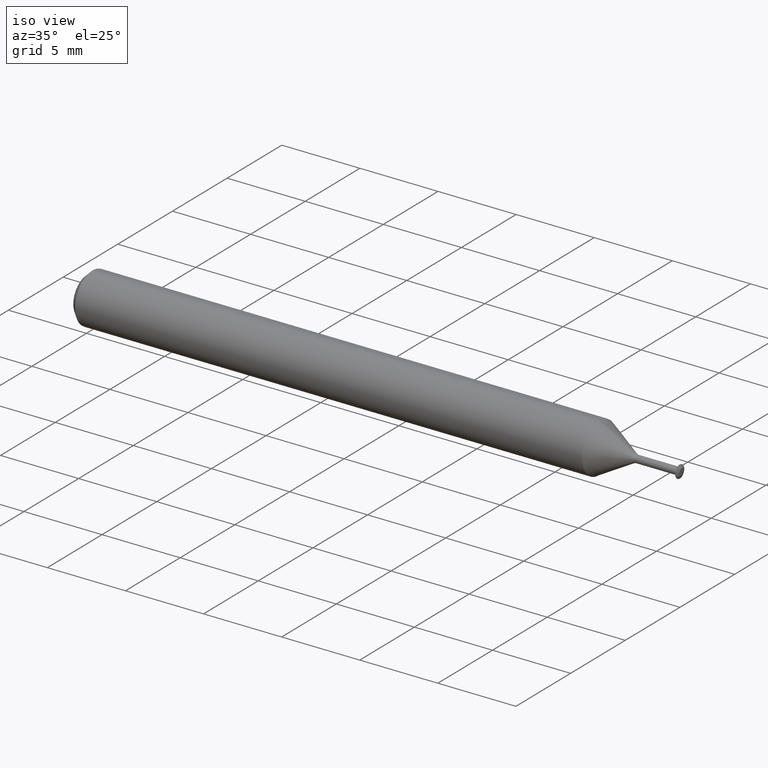
[diagram: clean part render]
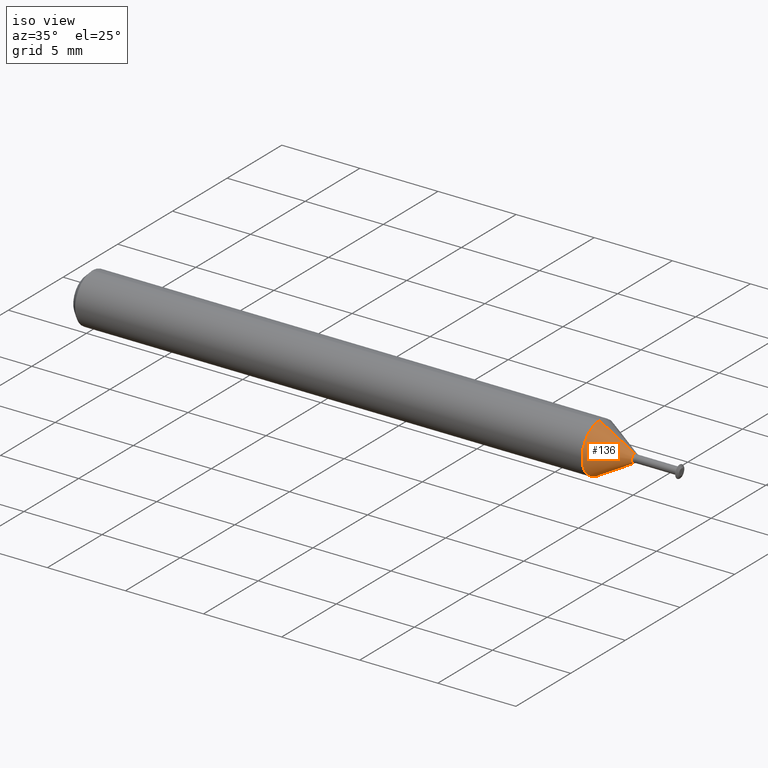
[diagram: same view with one face highlighted and labeled with its STEP entity id]
A machine part, iso view. The second image highlights one B-rep face of the part: STEP entity #136.
In plain terms, the highlighted conical surface has half-angle 30 deg.
Its self-contained STEP definition (entity closure, byte-faithful):
#1 = CARTESIAN_POINT ( 'NONE',  ( 1.292941102884447746, 0.0000000000000000000, 0.06235000000000000958 ) ) ;
#31 = VERTEX_POINT ( 'NONE', #43 ) ;
#32 = AXIS2_PLACEMENT_3D ( 'NONE', #100, #227, #268 ) ;
#38 = DIRECTION ( 'NONE',  ( -0.8660254037844383745, 6.123233995736770966E-17, -0.5000000000000004441 ) ) ;
#43 = CARTESIAN_POINT ( 'NONE',  ( 1.381865251354714053, 0.0000000000000000000, 0.01100961894323346582 ) ) ;
#53 = EDGE_CURVE ( 'NONE', #408, #31, #313, .T. ) ;
#100 = CARTESIAN_POINT ( 'NONE',  ( 1.381865251354714053, 0.0000000000000000000, 0.0000000000000000000 ) ) ;
#118 = VECTOR ( 'NONE', #454, 39.37007874015748143 ) ;
#136 = ADVANCED_FACE ( 'NONE', ( #213 ), #221, .T. ) ;
#137 = DIRECTION ( 'NONE',  ( 0.0000000000000000000, 0.0000000000000000000, 1.000000000000000000 ) ) ;
#154 = LINE ( 'NONE', #289, #458 ) ;
#188 = ORIENTED_EDGE ( 'NONE', *, *, #53, .T. ) ;
#193 = DIRECTION ( 'NONE',  ( 0.0000000000000000000, 0.0000000000000000000, 1.000000000000000000 ) ) ;
#197 = VERTEX_POINT ( 'NONE', #442 ) ;
#213 = FACE_OUTER_BOUND ( 'NONE', #349, .T. ) ;
#221 = CONICAL_SURFACE ( 'NONE', #226, 0.01100961894323346235, 0.5235987755982993708 ) ;
#226 = AXIS2_PLACEMENT_3D ( 'NONE', #368, #335, #137 ) ;
#227 = DIRECTION ( 'NONE',  ( -1.000000000000000000, -0.0000000000000000000, -0.0000000000000000000 ) ) ;
#228 = LINE ( 'NONE', #381, #118 ) ;
#240 = DIRECTION ( 'NONE',  ( -1.000000000000000000, -0.0000000000000000000, -0.0000000000000000000 ) ) ;
#268 = DIRECTION ( 'NONE',  ( 0.0000000000000000000, 0.0000000000000000000, 1.000000000000000000 ) ) ;
#270 = EDGE_CURVE ( 'NONE', #408, #197, #154, .T. ) ;
#274 = ORIENTED_EDGE ( 'NONE', *, *, #392, .F. ) ;
#284 = VERTEX_POINT ( 'NONE', #1 ) ;
#289 = CARTESIAN_POINT ( 'NONE',  ( 1.381865251354714053, 1.348289459866292480E-18, -0.01100961894323346235 ) ) ;
#294 = AXIS2_PLACEMENT_3D ( 'NONE', #496, #240, #193 ) ;
#307 = ORIENTED_EDGE ( 'NONE', *, *, #499, .T. ) ;
#313 = CIRCLE ( 'NONE', #32, 0.01100961894323346235 ) ;
#335 = DIRECTION ( 'NONE',  ( -1.000000000000000000, -0.0000000000000000000, -0.0000000000000000000 ) ) ;
#349 = EDGE_LOOP ( 'NONE', ( #388, #188, #307, #274 ) ) ;
#368 = CARTESIAN_POINT ( 'NONE',  ( 1.381865251354714053, 0.0000000000000000000, 0.0000000000000000000 ) ) ;
#381 = CARTESIAN_POINT ( 'NONE',  ( 1.381865251354714053, 0.0000000000000000000, 0.01100961894323346235 ) ) ;
#385 = CARTESIAN_POINT ( 'NONE',  ( 1.381865251354714053, 1.348289459866293251E-18, -0.01100961894323346582 ) ) ;
#388 = ORIENTED_EDGE ( 'NONE', *, *, #270, .F. ) ;
#392 = EDGE_CURVE ( 'NONE', #197, #284, #464, .T. ) ;
#408 = VERTEX_POINT ( 'NONE', #385 ) ;
#442 = CARTESIAN_POINT ( 'NONE',  ( 1.292941102884447746, 7.635672792683748212E-18, -0.06235000000000000958 ) ) ;
#454 = DIRECTION ( 'NONE',  ( -0.8660254037844383745, 0.0000000000000000000, 0.5000000000000004441 ) ) ;
#458 = VECTOR ( 'NONE', #38, 39.37007874015748143 ) ;
#464 = CIRCLE ( 'NONE', #294, 0.06235000000000000264 ) ;
#496 = CARTESIAN_POINT ( 'NONE',  ( 1.292941102884447746, 0.0000000000000000000, 0.0000000000000000000 ) ) ;
#499 = EDGE_CURVE ( 'NONE', #31, #284, #228, .T. ) ;